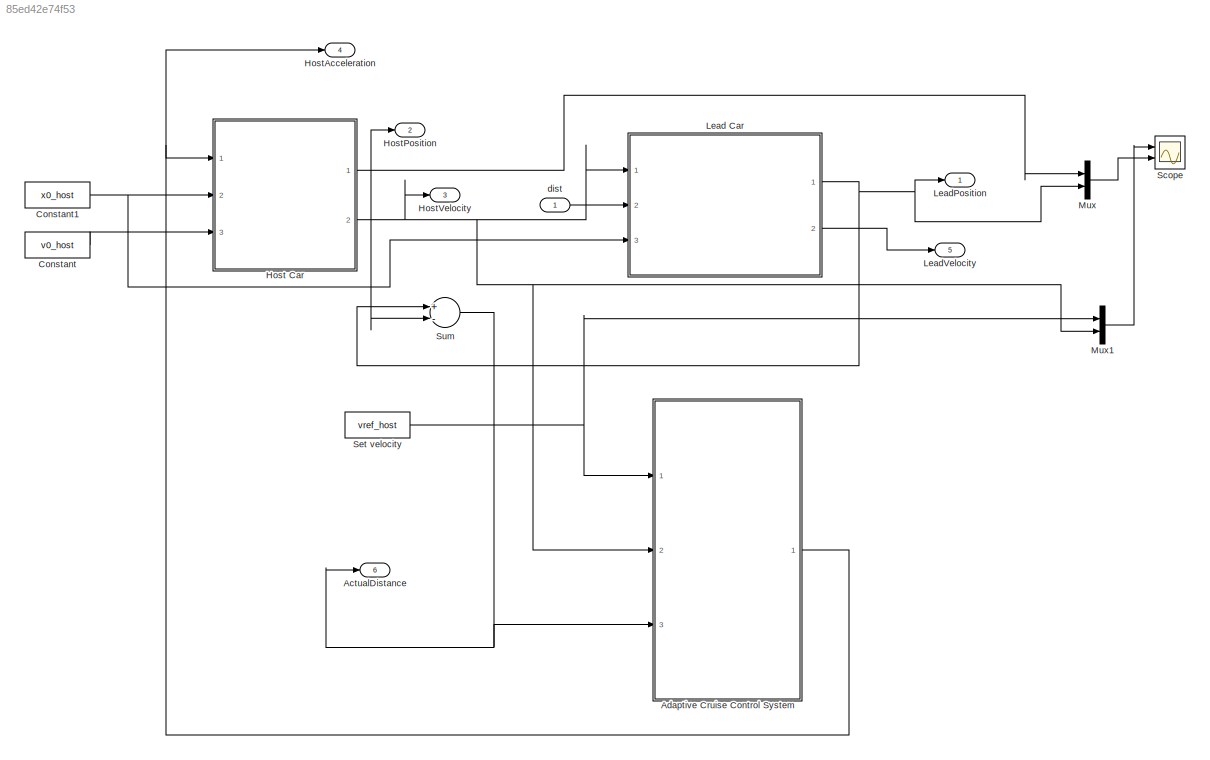
MODEL slx_85ed42e74f53
KIND model
CONFIG AbsTol = auto
CONFIG EnableMultiTasking = off
CONFIG FixedStep = Ts
CONFIG MaxStep = auto
CONFIG MinStep = auto
CONFIG RelTol = 1e-3
CONFIG SampleTimeConstraint = Unconstrained
CONFIG Solver = ode2
CONFIG SolverName = ode2
CONFIG StartTime = 0.0
CONFIG StopTime = endTime
BLOCK [Outport] ActualDistance
  IconDisplay = Port number
  Port = 6
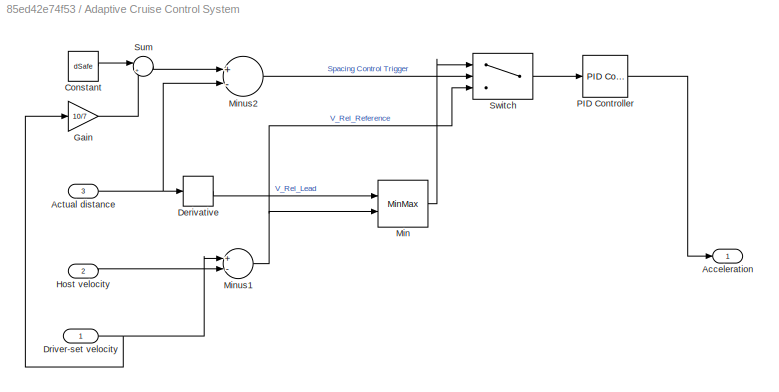
BLOCK [SubSystem] Adaptive Cruise Control System
  Ports = [3, 1]
  RequestExecContextInheritance = off
  VariantControl = MODE==4
BLOCK [Outport] Adaptive Cruise Control System/Acceleration 
  IconDisplay = Port number
BLOCK [Inport] Adaptive Cruise Control System/Actual distance
  IconDisplay = Port number
  Port = 3
BLOCK [Constant] Adaptive Cruise Control System/Constant
  Value = dSafe
BLOCK [Derivative] Adaptive Cruise Control System/Derivative
BLOCK [Inport] Adaptive Cruise Control System/Driver-set velocity
  IconDisplay = Port number
BLOCK [Gain] Adaptive Cruise Control System/Gain
  Gain = 10/7
  OutDataTypeStr = Inherit: Inherit via internal rule
  ParamDataTypeStr = Inherit: Inherit via internal rule
  SaturateOnIntegerOverflow = off
BLOCK [Inport] Adaptive Cruise Control System/Host velocity
  IconDisplay = Port number
  Port = 2
BLOCK [MinMax] Adaptive Cruise Control System/Min
  InputSameDT = off
  Inputs = 2
  Ports = [2, 1]
  SaturateOnIntegerOverflow = off
BLOCK [Sum] Adaptive Cruise Control System/Minus1
  InputSameDT = off
  Inputs = +-
  OutDataTypeStr = Inherit: Inherit via internal rule
  Ports = [2, 1]
  SaturateOnIntegerOverflow = off
BLOCK [Sum] Adaptive Cruise Control System/Minus2
  InputSameDT = off
  Inputs = +-
  OutDataTypeStr = Inherit: Inherit via internal rule
  Ports = [2, 1]
  SaturateOnIntegerOverflow = off
BLOCK [Reference] Adaptive Cruise Control System/PID Controller  REF=simulink/Continuous/PID Controller
  Ports = [1, 1]
  SourceBlock = simulink/Continuous/PID Controller
  SourceProductBaseCode = SL
  SourceProductName = Simulink
  SourceType = PID 1dof
BLOCK [Sum] Adaptive Cruise Control System/Sum
  IconShape = round
  InputSameDT = off
  Inputs = |++
  OutDataTypeStr = Inherit: Inherit via internal rule
  Ports = [2, 1]
  SaturateOnIntegerOverflow = off
BLOCK [Switch] Adaptive Cruise Control System/Switch
  Criteria = u2 > Threshold
  InputSameDT = off
  SaturateOnIntegerOverflow = off
BLOCK [Constant] Constant
  Value = v0_host
BLOCK [Constant] Constant1
  Value = x0_host
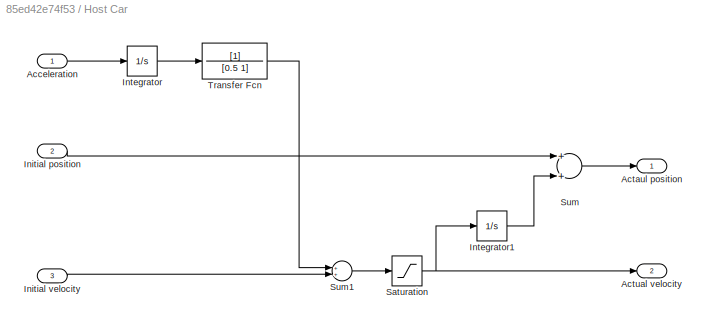
BLOCK [SubSystem] Host Car
  Ports = [3, 2]
  RequestExecContextInheritance = off
BLOCK [Inport] Host Car/Acceleration
  IconDisplay = Port number
BLOCK [Outport] Host Car/Actaul position
  IconDisplay = Port number
BLOCK [Outport] Host Car/Actual velocity
  IconDisplay = Port number
  Port = 2
BLOCK [Inport] Host Car/Initial position
  IconDisplay = Port number
  Port = 2
BLOCK [Inport] Host Car/Initial velocity
  IconDisplay = Port number
  Port = 3
BLOCK [Integrator] Host Car/Integrator
  Ports = [1, 1]
BLOCK [Integrator] Host Car/Integrator1
  Ports = [1, 1]
BLOCK [Saturate] Host Car/Saturation
  InputPortMap = u0
  LowerLimit = 0
  Ports = [1, 1]
  UpperLimit = vref_host
BLOCK [Sum] Host Car/Sum
  InputSameDT = off
  OutDataTypeStr = Inherit: Inherit via internal rule
  Ports = [2, 1]
  SaturateOnIntegerOverflow = off
BLOCK [Sum] Host Car/Sum1
  InputSameDT = off
  OutDataTypeStr = Inherit: Inherit via internal rule
  Ports = [2, 1]
  SaturateOnIntegerOverflow = off
BLOCK [TransferFcn] Host Car/Transfer Fcn
  Denominator = [0.5 1]
BLOCK [Outport] HostAcceleration
  IconDisplay = Port number
  Port = 4
BLOCK [Outport] HostPosition
  IconDisplay = Port number
  Port = 2
BLOCK [Outport] HostVelocity
  IconDisplay = Port number
  Port = 3
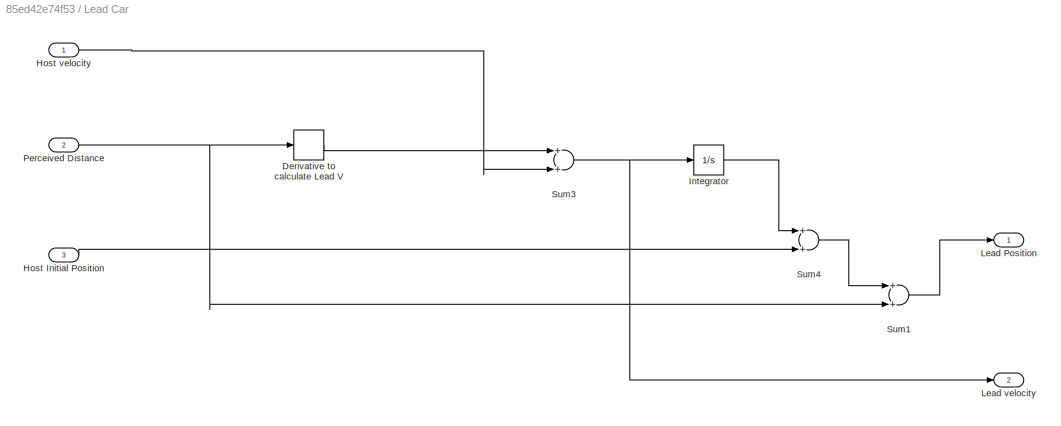
BLOCK [SubSystem] Lead Car
  Ports = [3, 2]
  RequestExecContextInheritance = off
BLOCK [Derivative] Lead Car/Derivative to calculate Lead V
BLOCK [Inport] Lead Car/Host Initial Position
  IconDisplay = Port number
  Port = 3
BLOCK [Inport] Lead Car/Host velocity
  IconDisplay = Port number
BLOCK [Integrator] Lead Car/Integrator
  Ports = [1, 1]
BLOCK [Outport] Lead Car/Lead Position
  IconDisplay = Port number
BLOCK [Outport] Lead Car/Lead velocity
  IconDisplay = Port number
  Port = 2
BLOCK [Inport] Lead Car/Perceived Distance
  IconDisplay = Port number
  Port = 2
BLOCK [Sum] Lead Car/Sum1
  InputSameDT = off
  OutDataTypeStr = Inherit: Inherit via internal rule
  Ports = [2, 1]
  SaturateOnIntegerOverflow = off
BLOCK [Sum] Lead Car/Sum3
  InputSameDT = off
  OutDataTypeStr = Inherit: Inherit via internal rule
  Ports = [2, 1]
  SaturateOnIntegerOverflow = off
BLOCK [Sum] Lead Car/Sum4
  InputSameDT = off
  OutDataTypeStr = Inherit: Inherit via internal rule
  Ports = [2, 1]
  SaturateOnIntegerOverflow = off
BLOCK [Outport] LeadPosition
  IconDisplay = Port number
BLOCK [Outport] LeadVelocity
  IconDisplay = Port number
  Port = 5
BLOCK [Mux] Mux
  DisplayOption = bar
  Inputs = 2
  Ports = [2, 1]
BLOCK [Mux] Mux1
  DisplayOption = bar
  Inputs = 2
  Ports = [2, 1]
BLOCK [Scope] Scope
  Floating = off
  NumInputPorts = 2
  Ports = [2]
  ScopeSpecificationString = Simulink.scopes.TimeScopeBlockCfg('CurrentConfiguration', extmgr.ConfigurationSet(extmgr.Configuration('Core','General UI',true),extmgr.Configuration('Core','Source UI',true),extmgr.Configuration('Sources','WiredSimulink',true),extmgr.Configuration('Visuals','Time Domain',true,'SerializedDisplays',{struct('MinYLimReal','7.5','MaxYLimReal','32.5','YLabelReal','','MinYLimMag','7.5','MaxYLimMag','32....<+1999ch>
BLOCK [Constant] Set velocity
  SampleTime = Ts
  Value = vref_host
BLOCK [Sum] Sum
  InputSameDT = off
  Inputs = +-
  OutDataTypeStr = Inherit: Inherit via internal rule
  Ports = [2, 1]
  SaturateOnIntegerOverflow = off
BLOCK [Inport] dist
  IconDisplay = Port number
NET Adaptive Cruise Control System/Actual distance:1 -> Adaptive Cruise Control System/Derivative:1, Adaptive Cruise Control System/Minus2:2
LINE Adaptive Cruise Control System/Constant:1 -> Adaptive Cruise Control System/Sum:1
LINE Adaptive Cruise Control System/Derivative:1 -> Adaptive Cruise Control System/Min:1
NET Adaptive Cruise Control System/Driver-set velocity:1 -> Adaptive Cruise Control System/Gain:1, Adaptive Cruise Control System/Minus1:1
LINE Adaptive Cruise Control System/Gain:1 -> Adaptive Cruise Control System/Sum:2
LINE Adaptive Cruise Control System/Host velocity:1 -> Adaptive Cruise Control System/Minus1:2
LINE Adaptive Cruise Control System/Min:1 -> Adaptive Cruise Control System/Switch:1
NET Adaptive Cruise Control System/Minus1:1 -> Adaptive Cruise Control System/Min:2, Adaptive Cruise Control System/Switch:3
LINE Adaptive Cruise Control System/Minus2:1 -> Adaptive Cruise Control System/Switch:2
LINE Adaptive Cruise Control System/PID Controller:1 -> Adaptive Cruise Control System/Acceleration :1
LINE Adaptive Cruise Control System/Sum:1 -> Adaptive Cruise Control System/Minus2:1
LINE Adaptive Cruise Control System/Switch:1 -> Adaptive Cruise Control System/PID Controller:1
NET Adaptive Cruise Control System:1 -> Host Car:1, HostAcceleration:1
NET Constant1:1 -> Host Car:2, Lead Car:3
LINE Constant:1 -> Host Car:3
LINE Host Car/Acceleration:1 -> Host Car/Integrator:1
LINE Host Car/Initial position:1 -> Host Car/Sum:1
LINE Host Car/Initial velocity:1 -> Host Car/Sum1:2
LINE Host Car/Integrator1:1 -> Host Car/Sum:2
LINE Host Car/Integrator:1 -> Host Car/Transfer Fcn:1
NET Host Car/Saturation:1 -> Host Car/Actual velocity:1, Host Car/Integrator1:1
LINE Host Car/Sum1:1 -> Host Car/Saturation:1
LINE Host Car/Sum:1 -> Host Car/Actaul position:1
LINE Host Car/Transfer Fcn:1 -> Host Car/Sum1:1
NET Host Car:1 -> HostPosition:1, Mux:1, Sum:2
NET Host Car:2 -> Adaptive Cruise Control System:2, HostVelocity:1, Lead Car:1, Mux1:2
LINE Lead Car/Derivative to calculate Lead V:1 -> Lead Car/Sum3:1
LINE Lead Car/Host Initial Position:1 -> Lead Car/Sum4:2
LINE Lead Car/Host velocity:1 -> Lead Car/Sum3:2
LINE Lead Car/Integrator:1 -> Lead Car/Sum4:1
NET Lead Car/Perceived Distance:1 -> Lead Car/Derivative to calculate Lead V:1, Lead Car/Sum1:2
LINE Lead Car/Sum1:1 -> Lead Car/Lead Position:1
NET Lead Car/Sum3:1 -> Lead Car/Integrator:1, Lead Car/Lead velocity:1
LINE Lead Car/Sum4:1 -> Lead Car/Sum1:1
NET Lead Car:1 -> LeadPosition:1, Mux:2, Sum:1
LINE Lead Car:2 -> LeadVelocity:1
LINE Mux1:1 -> Scope:1
LINE Mux:1 -> Scope:2
NET Set velocity:1 -> Adaptive Cruise Control System:1, Mux1:1
NET Sum:1 -> ActualDistance:1, Adaptive Cruise Control System:3
LINE dist:1 -> Lead Car:2
note: NET lines group one-source signal fan-out (src -> all destinations, sorted); 1:1 wires keep LINE
